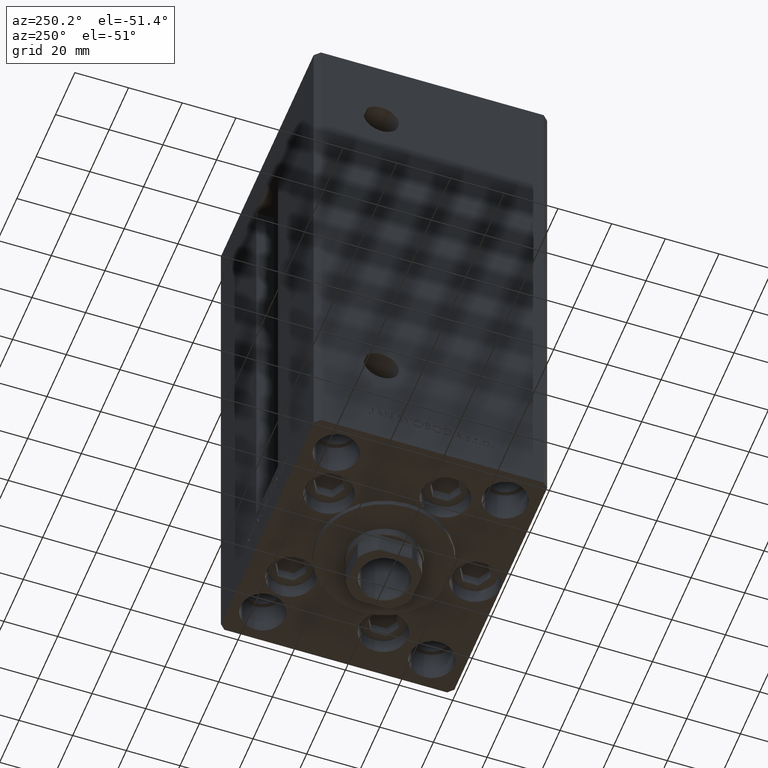
[diagram: clean part render]
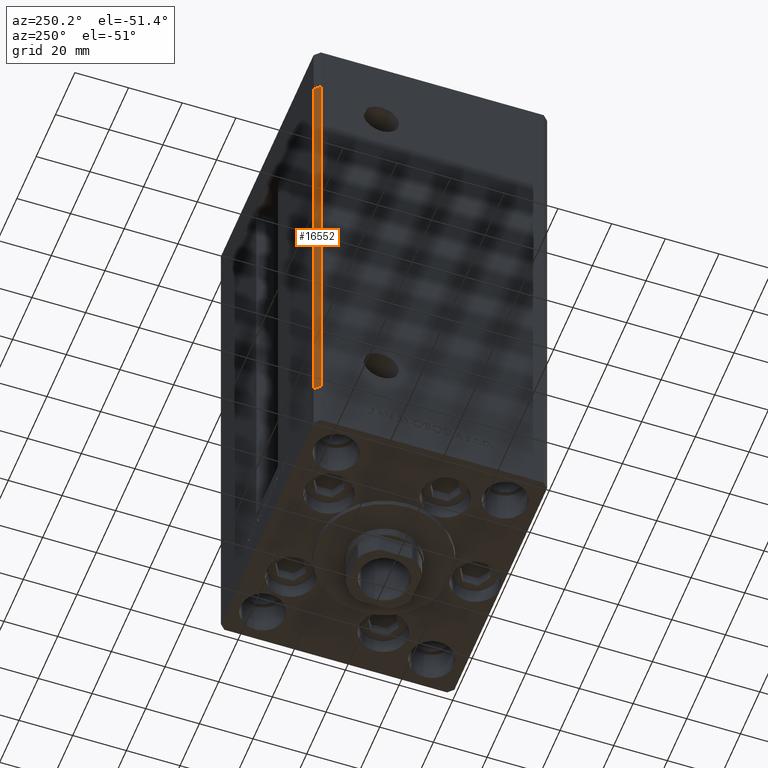
[diagram: same view with one face highlighted and labeled with its STEP entity id]
A machine part, auxiliary view. The second image highlights one B-rep face of the part: STEP entity #16552.
In plain terms, the highlighted planar face has unit normal (0.7071, -0.7071, 0).
Its self-contained STEP definition (entity closure, byte-faithful):
#4000 = ORIENTED_EDGE ( 'NONE', *, *, #16671, .T. ) ;
#4787 = AXIS2_PLACEMENT_3D ( 'NONE', #34239, #22314, #42580 ) ;
#8892 = CARTESIAN_POINT ( 'NONE',  ( -48.00000000000000711, 43.50000000000000000, 168.5000000000000000 ) ) ;
#10934 = VERTEX_POINT ( 'NONE', #35772 ) ;
#16424 = LINE ( 'NONE', #23553, #32361 ) ;
#16552 = ADVANCED_FACE ( 'NONE', ( #26372 ), #41839, .F. ) ;
#16671 = EDGE_CURVE ( 'NONE', #28479, #44084, #16424, .T. ) ;
#20324 = VECTOR ( 'NONE', #24646, 1000.000000000000000 ) ;
#21121 = ORIENTED_EDGE ( 'NONE', *, *, #30626, .F. ) ;
#22188 = ORIENTED_EDGE ( 'NONE', *, *, #49917, .T. ) ;
#22314 = DIRECTION ( 'NONE',  ( 0.7071067811865463515, -0.7071067811865487940, 0.000000000000000000 ) ) ;
#22827 = LINE ( 'NONE', #41853, #40320 ) ;
#22960 = VERTEX_POINT ( 'NONE', #31322 ) ;
#23553 = CARTESIAN_POINT ( 'NONE',  ( -48.00000000000000711, 43.50000000000000000, 0.000000000000000000 ) ) ;
#23967 = CARTESIAN_POINT ( 'NONE',  ( -50.00000000000001421, 41.49999999999999289, 0.000000000000000000 ) ) ;
#24537 = DIRECTION ( 'NONE',  ( -0.7071067811865487940, -0.7071067811865463515, 0.000000000000000000 ) ) ;
#24646 = DIRECTION ( 'NONE',  ( -0.7071067811865487940, -0.7071067811865463515, 0.000000000000000000 ) ) ;
#26372 = FACE_OUTER_BOUND ( 'NONE', #27756, .T. ) ;
#27267 = EDGE_CURVE ( 'NONE', #10934, #44084, #29647, .T. ) ;
#27756 = EDGE_LOOP ( 'NONE', ( #4000, #45328, #21121, #22188 ) ) ;
#28479 = VERTEX_POINT ( 'NONE', #48571 ) ;
#29647 = LINE ( 'NONE', #36994, #47922 ) ;
#30626 = EDGE_CURVE ( 'NONE', #22960, #10934, #43433, .T. ) ;
#31322 = CARTESIAN_POINT ( 'NONE',  ( -48.00000000000000711, 43.50000000000000000, 168.5000000000000000 ) ) ;
#32361 = VECTOR ( 'NONE', #24537, 1000.000000000000000 ) ;
#34239 = CARTESIAN_POINT ( 'NONE',  ( -48.00000000000000711, 43.50000000000000000, 168.5000000000000000 ) ) ;
#35772 = CARTESIAN_POINT ( 'NONE',  ( -50.00000000000001421, 41.49999999999999289, 168.5000000000000000 ) ) ;
#36994 = CARTESIAN_POINT ( 'NONE',  ( -50.00000000000001421, 41.49999999999999289, 168.5000000000000000 ) ) ;
#38295 = DIRECTION ( 'NONE',  ( -0.000000000000000000, -0.000000000000000000, -1.000000000000000000 ) ) ;
#40320 = VECTOR ( 'NONE', #38295, 1000.000000000000000 ) ;
#41839 = PLANE ( 'NONE',  #4787 ) ;
#41853 = CARTESIAN_POINT ( 'NONE',  ( -48.00000000000000711, 43.50000000000000000, 168.5000000000000000 ) ) ;
#42580 = DIRECTION ( 'NONE',  ( 0.7071067811865487940, 0.7071067811865463515, 0.000000000000000000 ) ) ;
#43433 = LINE ( 'NONE', #8892, #20324 ) ;
#44084 = VERTEX_POINT ( 'NONE', #23967 ) ;
#45328 = ORIENTED_EDGE ( 'NONE', *, *, #27267, .F. ) ;
#47922 = VECTOR ( 'NONE', #48430, 1000.000000000000000 ) ;
#48430 = DIRECTION ( 'NONE',  ( -0.000000000000000000, -0.000000000000000000, -1.000000000000000000 ) ) ;
#48571 = CARTESIAN_POINT ( 'NONE',  ( -48.00000000000000711, 43.50000000000000000, 0.000000000000000000 ) ) ;
#49917 = EDGE_CURVE ( 'NONE', #22960, #28479, #22827, .T. ) ;